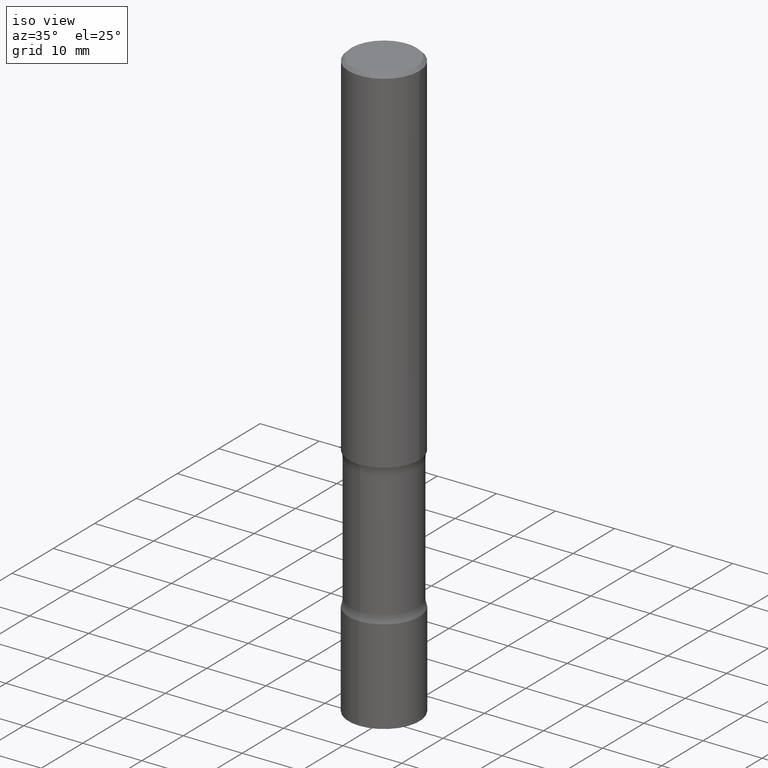
[diagram: clean part render]
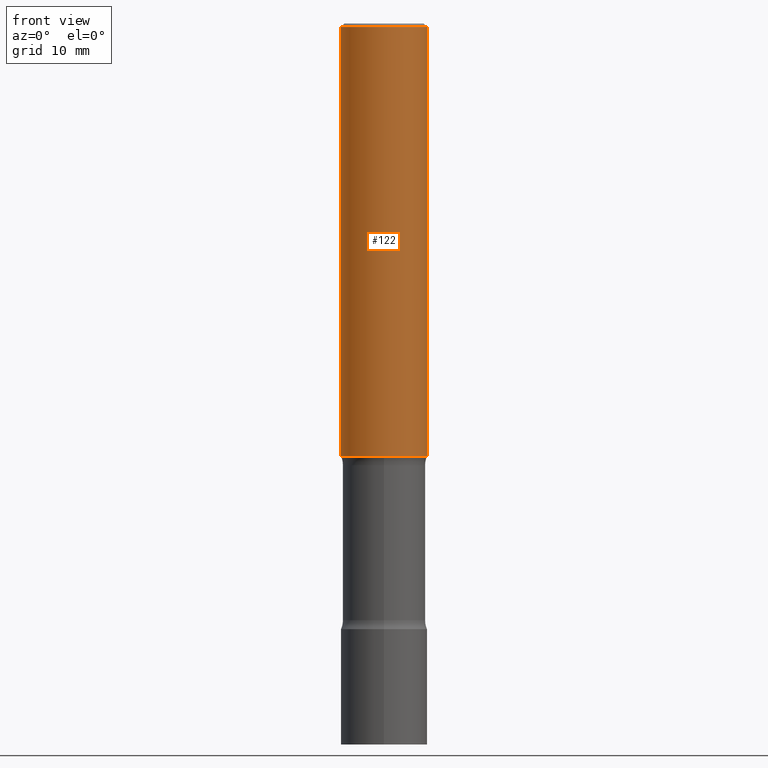
[diagram: tour spotlight — one face highlighted and labeled with its STEP entity id]
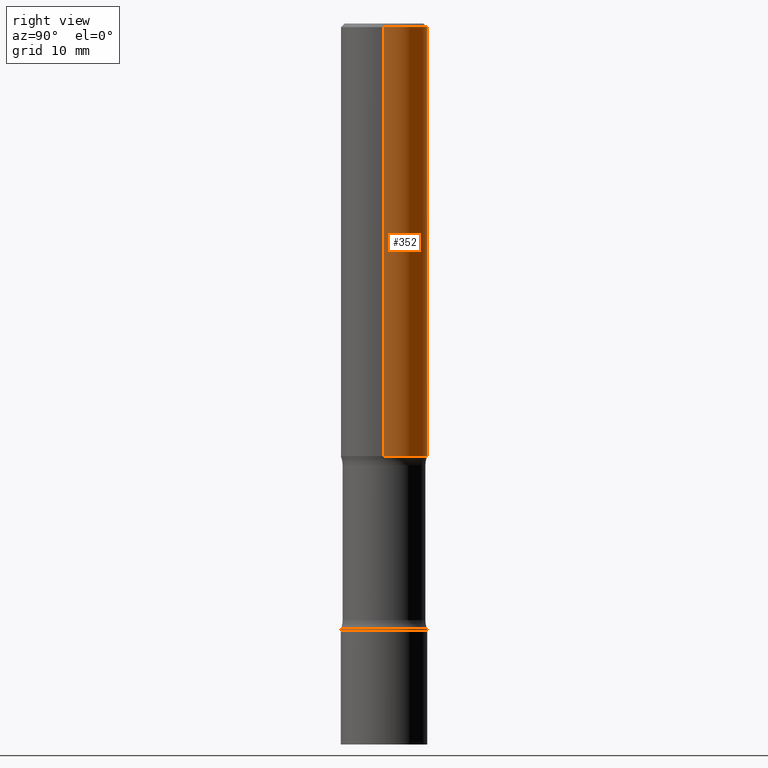
[diagram: tour spotlight — one face highlighted and labeled with its STEP entity id]
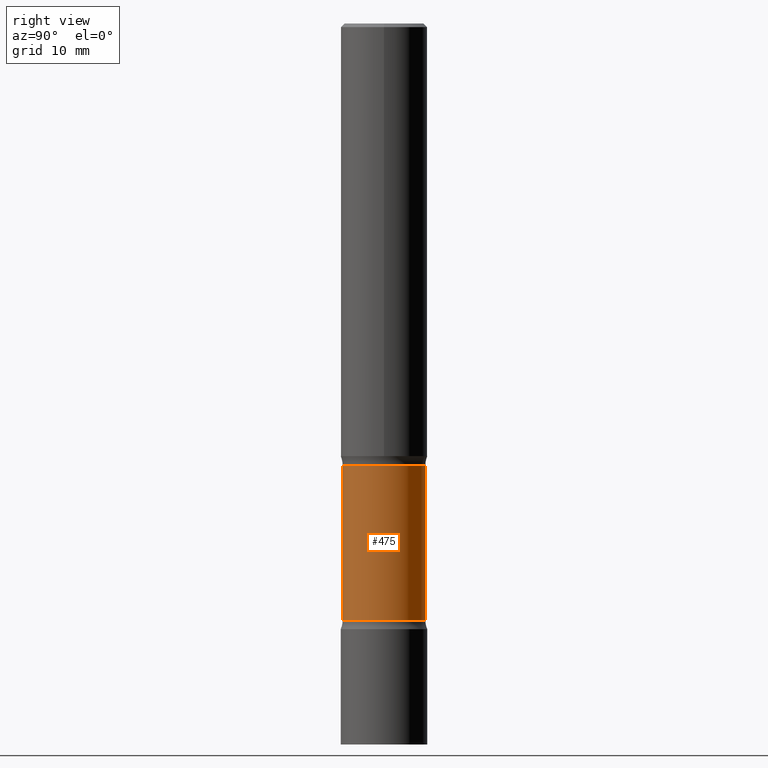
[diagram: tour spotlight — one face highlighted and labeled with its STEP entity id]
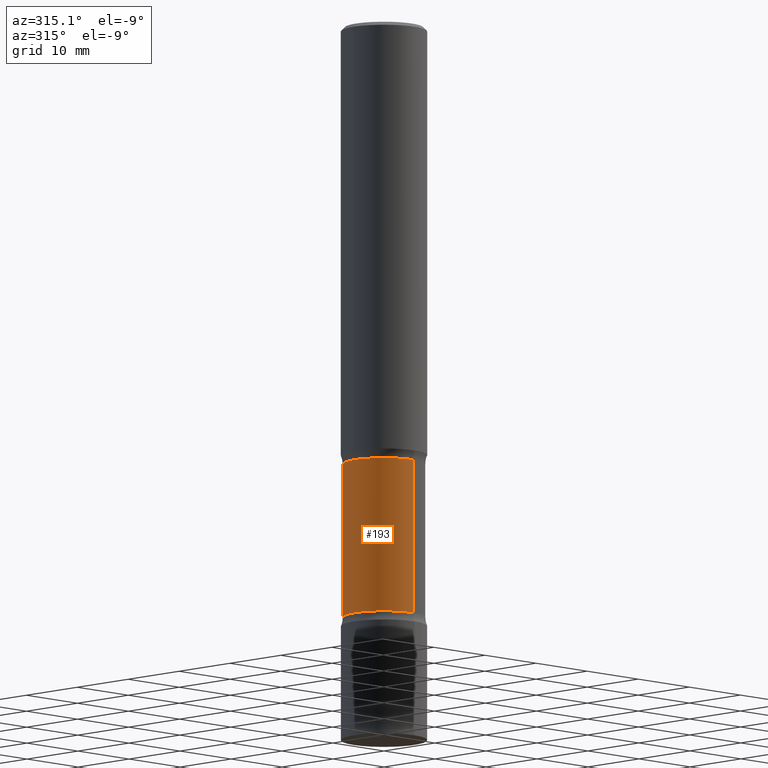
[diagram: tour spotlight — one face highlighted and labeled with its STEP entity id]
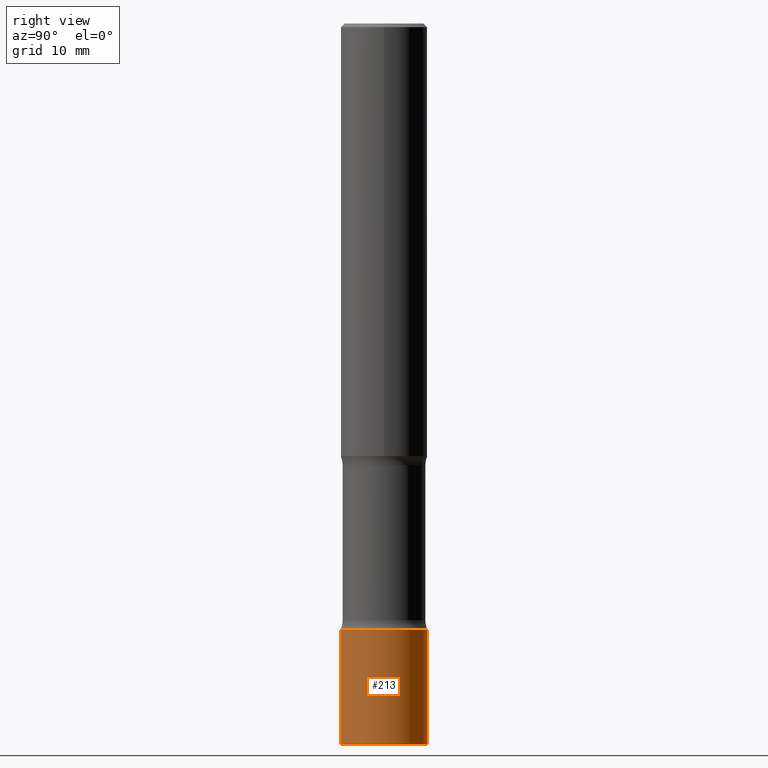
[diagram: tour spotlight — one face highlighted and labeled with its STEP entity id]
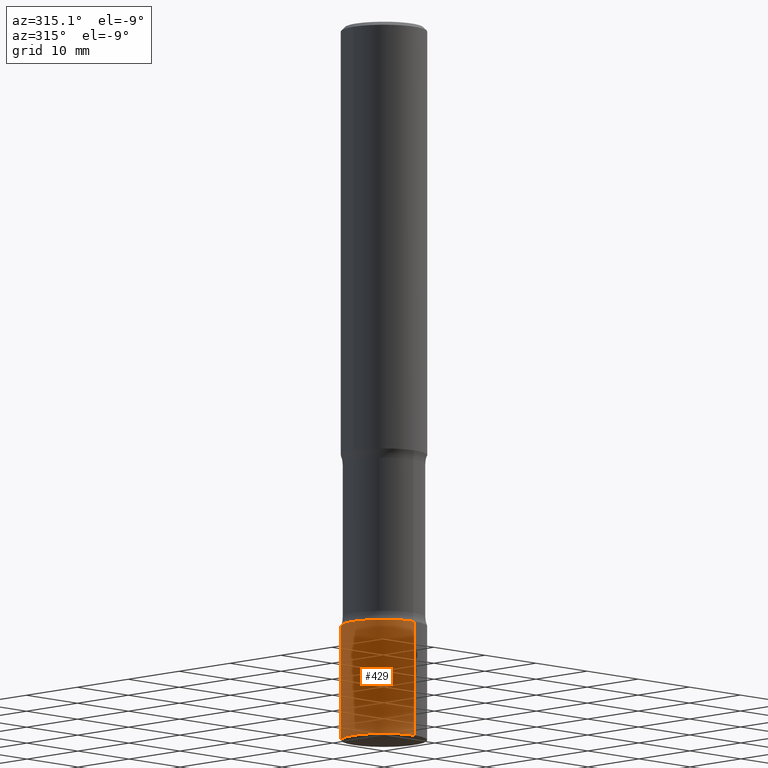
[diagram: tour spotlight — one face highlighted and labeled with its STEP entity id]
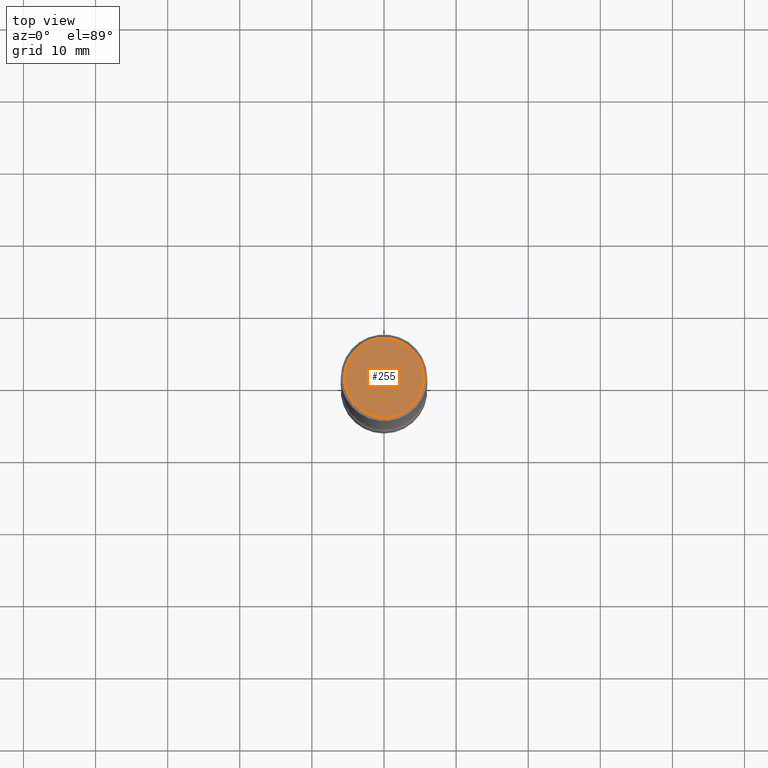
[diagram: tour spotlight — one face highlighted and labeled with its STEP entity id]
A machine part: a face-by-face anatomy tour. The part has 18 B-rep faces; the first image is the clean iso view, then the 7 largest visible faces are spotlighted one at a time (largest first), each with its STEP entity span.

Face 1 — front view, entity #122. In plain terms, the highlighted cylindrical surface (partial cylindrical patch) has radius 5.9995 mm, axis along (-0, 0, 1).
Definition (entity closure, byte-faithful):
#11 = CARTESIAN_POINT ( 'NONE',  ( 5.776686413970529753E-29, -8.247577218615278049E-15, -2.362199999999999633 ) ) ;
#15 = DIRECTION ( 'NONE',  ( -2.445468806185136597E-29, 3.491481338843145583E-15, 1.000000000000000000 ) ) ;
#39 = EDGE_CURVE ( 'NONE', #190, #227, #426, .T. ) ;
#50 = AXIS2_PLACEMENT_3D ( 'NONE', #11, #15, #476 ) ;
#70 = CARTESIAN_POINT ( 'NONE',  ( -0.2361999999999997157, 1.579546157692631255E-15, -0.02000000000000005246 ) ) ;
#79 = DIRECTION ( 'NONE',  ( -2.445468806185136877E-29, 3.491481338843145188E-15, 1.000000000000000000 ) ) ;
#81 = DIRECTION ( 'NONE',  ( -2.445468806185136597E-29, 3.491481338843145583E-15, 1.000000000000000000 ) ) ;
#101 = CARTESIAN_POINT ( 'NONE',  ( 4.890937612370285420E-31, -6.982962677686308865E-17, -0.02000000000000005246 ) ) ;
#121 = FACE_OUTER_BOUND ( 'NONE', #409, .T. ) ;
#122 = ADVANCED_FACE ( 'NONE', ( #121 ), #473, .T. ) ;
#173 = VERTEX_POINT ( 'NONE', #501 ) ;
#184 = ORIENTED_EDGE ( 'NONE', *, *, #435, .T. ) ;
#190 = VERTEX_POINT ( 'NONE', #505 ) ;
#210 = VECTOR ( 'NONE', #439, 39.37007874015748143 ) ;
#227 = VERTEX_POINT ( 'NONE', #70 ) ;
#240 = DIRECTION ( 'NONE',  ( 1.000000000000000000, -6.982962677686266711E-15, 4.876176775795935793E-29 ) ) ;
#241 = CIRCLE ( 'NONE', #300, 0.2361999999999997157 ) ;
#254 = DIRECTION ( 'NONE',  ( 1.000000000000000000, -6.982962677686266711E-15, 0.000000000000000000 ) ) ;
#261 = VECTOR ( 'NONE', #79, 39.37007874015748143 ) ;
#263 = ORIENTED_EDGE ( 'NONE', *, *, #39, .F. ) ;
#282 = CARTESIAN_POINT ( 'NONE',  ( 0.2361999999999998545, -1.649375784469495145E-15, 1.151752954442999387E-29 ) ) ;
#300 = AXIS2_PLACEMENT_3D ( 'NONE', #101, #412, #254 ) ;
#312 = CARTESIAN_POINT ( 'NONE',  ( 0.000000000000000000, 0.000000000000000000, 0.000000000000000000 ) ) ;
#334 = VERTEX_POINT ( 'NONE', #431 ) ;
#355 = ORIENTED_EDGE ( 'NONE', *, *, #436, .T. ) ;
#389 = CARTESIAN_POINT ( 'NONE',  ( -0.2361999999999998545, 1.678301941865355605E-15, -1.161852468318208056E-29 ) ) ;
#402 = ORIENTED_EDGE ( 'NONE', *, *, #490, .F. ) ;
#403 = AXIS2_PLACEMENT_3D ( 'NONE', #312, #81, #240 ) ;
#409 = EDGE_LOOP ( 'NONE', ( #263, #184, #355, #402 ) ) ;
#412 = DIRECTION ( 'NONE',  ( -2.445468806185136597E-29, 3.491481338843145583E-15, 1.000000000000000000 ) ) ;
#426 = LINE ( 'NONE', #389, #261 ) ;
#431 = CARTESIAN_POINT ( 'NONE',  ( 0.2361999999999999933, -9.896953003084774574E-15, -2.362199999999999633 ) ) ;
#435 = EDGE_CURVE ( 'NONE', #190, #334, #438, .T. ) ;
#436 = EDGE_CURVE ( 'NONE', #334, #173, #444, .T. ) ;
#438 = CIRCLE ( 'NONE', #50, 0.2361999999999999933 ) ;
#439 = DIRECTION ( 'NONE',  ( -2.445468806185136877E-29, 3.491481338843145188E-15, 1.000000000000000000 ) ) ;
#444 = LINE ( 'NONE', #282, #210 ) ;
#473 = CYLINDRICAL_SURFACE ( 'NONE', #403, 0.2361999999999998545 ) ;
#476 = DIRECTION ( 'NONE',  ( 1.000000000000000000, -6.982962677686269077E-15, 0.000000000000000000 ) ) ;
#490 = EDGE_CURVE ( 'NONE', #227, #173, #241, .T. ) ;
#501 = CARTESIAN_POINT ( 'NONE',  ( 0.2361999999999997157, -1.690279253850496996E-15, -0.02000000000000005246 ) ) ;
#505 = CARTESIAN_POINT ( 'NONE',  ( -0.2362000000000000210, -2.480401480830709941E-15, -2.362199999999999633 ) ) ;

Face 2 — right view, entity #352. In plain terms, the highlighted cylindrical surface (partial cylindrical patch) has radius 5.9995 mm, axis along (-0, 0, 1).
Definition (entity closure, byte-faithful):
#39 = EDGE_CURVE ( 'NONE', #190, #227, #426, .T. ) ;
#56 = DIRECTION ( 'NONE',  ( -2.445468806185136597E-29, 3.491481338843145583E-15, 1.000000000000000000 ) ) ;
#70 = CARTESIAN_POINT ( 'NONE',  ( -0.2361999999999997157, 1.579546157692631255E-15, -0.02000000000000005246 ) ) ;
#79 = DIRECTION ( 'NONE',  ( -2.445468806185136877E-29, 3.491481338843145188E-15, 1.000000000000000000 ) ) ;
#80 = DIRECTION ( 'NONE',  ( -2.445468806185136597E-29, 3.491481338843145583E-15, 1.000000000000000000 ) ) ;
#83 = CARTESIAN_POINT ( 'NONE',  ( 5.776686413970529753E-29, -8.247577218615278049E-15, -2.362199999999999633 ) ) ;
#125 = AXIS2_PLACEMENT_3D ( 'NONE', #157, #196, #201 ) ;
#127 = EDGE_CURVE ( 'NONE', #173, #227, #337, .T. ) ;
#129 = EDGE_LOOP ( 'NONE', ( #440, #357, #488, #419 ) ) ;
#131 = FACE_OUTER_BOUND ( 'NONE', #129, .T. ) ;
#157 = CARTESIAN_POINT ( 'NONE',  ( 4.890937612370285420E-31, -6.982962677686308865E-17, -0.02000000000000005246 ) ) ;
#173 = VERTEX_POINT ( 'NONE', #501 ) ;
#190 = VERTEX_POINT ( 'NONE', #505 ) ;
#196 = DIRECTION ( 'NONE',  ( -2.445468806185136597E-29, 3.491481338843145583E-15, 1.000000000000000000 ) ) ;
#201 = DIRECTION ( 'NONE',  ( 1.000000000000000000, -6.982962677686266711E-15, 0.000000000000000000 ) ) ;
#207 = CARTESIAN_POINT ( 'NONE',  ( 0.000000000000000000, 0.000000000000000000, 0.000000000000000000 ) ) ;
#210 = VECTOR ( 'NONE', #439, 39.37007874015748143 ) ;
#227 = VERTEX_POINT ( 'NONE', #70 ) ;
#243 = CYLINDRICAL_SURFACE ( 'NONE', #456, 0.2361999999999998545 ) ;
#246 = DIRECTION ( 'NONE',  ( 1.000000000000000000, -6.982962677686269077E-15, 0.000000000000000000 ) ) ;
#261 = VECTOR ( 'NONE', #79, 39.37007874015748143 ) ;
#282 = CARTESIAN_POINT ( 'NONE',  ( 0.2361999999999998545, -1.649375784469495145E-15, 1.151752954442999387E-29 ) ) ;
#334 = VERTEX_POINT ( 'NONE', #431 ) ;
#337 = CIRCLE ( 'NONE', #125, 0.2361999999999997157 ) ;
#350 = DIRECTION ( 'NONE',  ( 1.000000000000000000, -6.982962677686266711E-15, 4.876176775795935793E-29 ) ) ;
#352 = ADVANCED_FACE ( 'NONE', ( #131 ), #243, .T. ) ;
#357 = ORIENTED_EDGE ( 'NONE', *, *, #39, .T. ) ;
#389 = CARTESIAN_POINT ( 'NONE',  ( -0.2361999999999998545, 1.678301941865355605E-15, -1.161852468318208056E-29 ) ) ;
#405 = CIRCLE ( 'NONE', #489, 0.2361999999999999933 ) ;
#419 = ORIENTED_EDGE ( 'NONE', *, *, #436, .F. ) ;
#426 = LINE ( 'NONE', #389, #261 ) ;
#431 = CARTESIAN_POINT ( 'NONE',  ( 0.2361999999999999933, -9.896953003084774574E-15, -2.362199999999999633 ) ) ;
#436 = EDGE_CURVE ( 'NONE', #334, #173, #444, .T. ) ;
#439 = DIRECTION ( 'NONE',  ( -2.445468806185136877E-29, 3.491481338843145188E-15, 1.000000000000000000 ) ) ;
#440 = ORIENTED_EDGE ( 'NONE', *, *, #468, .T. ) ;
#444 = LINE ( 'NONE', #282, #210 ) ;
#456 = AXIS2_PLACEMENT_3D ( 'NONE', #207, #80, #350 ) ;
#468 = EDGE_CURVE ( 'NONE', #334, #190, #405, .T. ) ;
#488 = ORIENTED_EDGE ( 'NONE', *, *, #127, .F. ) ;
#489 = AXIS2_PLACEMENT_3D ( 'NONE', #83, #56, #246 ) ;
#501 = CARTESIAN_POINT ( 'NONE',  ( 0.2361999999999997157, -1.690279253850496996E-15, -0.02000000000000005246 ) ) ;
#505 = CARTESIAN_POINT ( 'NONE',  ( -0.2362000000000000210, -2.480401480830709941E-15, -2.362199999999999633 ) ) ;

Face 3 — right view, entity #475. In plain terms, the highlighted cylindrical surface (partial cylindrical patch) has radius 5.7391 mm, axis along (0, -0, -1).
Definition (entity closure, byte-faithful):
#5 = EDGE_CURVE ( 'NONE', #478, #52, #31, .T. ) ;
#25 = EDGE_CURVE ( 'NONE', #52, #294, #395, .T. ) ;
#31 = LINE ( 'NONE', #453, #351 ) ;
#37 = CARTESIAN_POINT ( 'NONE',  ( -1.585289574835001111E-15, -0.2259500000000087272, -2.411772547846564585 ) ) ;
#40 = DIRECTION ( 'NONE',  ( 6.982962677686265922E-15, 1.000000000000000000, -2.418099573944909253E-15 ) ) ;
#52 = VERTEX_POINT ( 'NONE', #470 ) ;
#53 = FACE_OUTER_BOUND ( 'NONE', #319, .T. ) ;
#63 = VERTEX_POINT ( 'NONE', #37 ) ;
#86 = EDGE_CURVE ( 'NONE', #63, #294, #432, .T. ) ;
#92 = ORIENTED_EDGE ( 'NONE', *, *, #5, .F. ) ;
#108 = DIRECTION ( 'NONE',  ( 6.982962677686265922E-15, 1.000000000000000000, -3.627149360917364668E-15 ) ) ;
#134 = CYLINDRICAL_SURFACE ( 'NONE', #338, 0.2259500000000001507 ) ;
#146 = DIRECTION ( 'NONE',  ( 6.982962677686267499E-15, 1.000000000000000000, -2.418099573944909253E-15 ) ) ;
#165 = EDGE_CURVE ( 'NONE', #478, #63, #283, .T. ) ;
#194 = DIRECTION ( 'NONE',  ( 2.595083030119239242E-29, -3.277225254656718769E-15, -1.000000000000000000 ) ) ;
#203 = CARTESIAN_POINT ( 'NONE',  ( 1.577800417023270494E-15, 0.2259499999999915187, -2.411772547846566361 ) ) ;
#215 = DIRECTION ( 'NONE',  ( 2.595083030119239242E-29, -3.277225254656718769E-15, -1.000000000000000000 ) ) ;
#229 = ORIENTED_EDGE ( 'NONE', *, *, #25, .F. ) ;
#237 = DIRECTION ( 'NONE',  ( 2.595083030119239242E-29, -3.277225254656719163E-15, -1.000000000000000000 ) ) ;
#245 = ORIENTED_EDGE ( 'NONE', *, *, #165, .T. ) ;
#262 = AXIS2_PLACEMENT_3D ( 'NONE', #330, #336, #108 ) ;
#283 = CIRCLE ( 'NONE', #262, 0.2259500000000001230 ) ;
#287 = CARTESIAN_POINT ( 'NONE',  ( 9.722309541468059850E-29, -1.361063429711225876E-14, -3.937000000000000277 ) ) ;
#294 = VERTEX_POINT ( 'NONE', #415 ) ;
#319 = EDGE_LOOP ( 'NONE', ( #245, #354, #229, #92 ) ) ;
#330 = CARTESIAN_POINT ( 'NONE',  ( 5.764217663312678584E-29, -8.612120371819300146E-15, -2.411772547846565473 ) ) ;
#336 = DIRECTION ( 'NONE',  ( 2.595083030119239242E-29, -3.277225254656718769E-15, -1.000000000000000000 ) ) ;
#338 = AXIS2_PLACEMENT_3D ( 'NONE', #287, #215, #40 ) ;
#351 = VECTOR ( 'NONE', #370, 39.37007874015748143 ) ;
#354 = ORIENTED_EDGE ( 'NONE', *, *, #86, .T. ) ;
#368 = AXIS2_PLACEMENT_3D ( 'NONE', #493, #194, #146 ) ;
#370 = DIRECTION ( 'NONE',  ( 2.595083030119239242E-29, -3.277225254656719163E-15, -1.000000000000000000 ) ) ;
#395 = CIRCLE ( 'NONE', #368, 0.2259500000000001785 ) ;
#415 = CARTESIAN_POINT ( 'NONE',  ( -1.585289574834976853E-15, -0.2259500000000115305, -3.257527452153434755 ) ) ;
#428 = CARTESIAN_POINT ( 'NONE',  ( -1.550129522596381145E-15, -0.2259500000000137787, -3.936999999999999389 ) ) ;
#432 = LINE ( 'NONE', #428, #499 ) ;
#453 = CARTESIAN_POINT ( 'NONE',  ( 1.577800417023310331E-15, 0.2259499999999865227, -3.937000000000000721 ) ) ;
#470 = CARTESIAN_POINT ( 'NONE',  ( 1.577800417023292779E-15, 0.2259499999999888264, -3.257527452153435643 ) ) ;
#475 = ADVANCED_FACE ( 'NONE', ( #53 ), #134, .T. ) ;
#478 = VERTEX_POINT ( 'NONE', #203 ) ;
#493 = CARTESIAN_POINT ( 'NONE',  ( 7.959021863119556316E-29, -1.138384970346355123E-14, -3.257527452153435199 ) ) ;
#499 = VECTOR ( 'NONE', #237, 39.37007874015748143 ) ;

Face 4 — auxiliary view, entity #193. In plain terms, the highlighted cylindrical surface (partial cylindrical patch) has radius 5.7391 mm, axis along (0, -0, -1).
Definition (entity closure, byte-faithful):
#5 = EDGE_CURVE ( 'NONE', #478, #52, #31, .T. ) ;
#20 = CIRCLE ( 'NONE', #75, 0.2259500000000001785 ) ;
#31 = LINE ( 'NONE', #453, #351 ) ;
#37 = CARTESIAN_POINT ( 'NONE',  ( -1.585289574835001111E-15, -0.2259500000000087272, -2.411772547846564585 ) ) ;
#46 = DIRECTION ( 'NONE',  ( 2.595083030119239242E-29, -3.277225254656718769E-15, -1.000000000000000000 ) ) ;
#49 = EDGE_CURVE ( 'NONE', #63, #478, #186, .T. ) ;
#52 = VERTEX_POINT ( 'NONE', #470 ) ;
#57 = AXIS2_PLACEMENT_3D ( 'NONE', #383, #418, #154 ) ;
#63 = VERTEX_POINT ( 'NONE', #37 ) ;
#75 = AXIS2_PLACEMENT_3D ( 'NONE', #120, #123, #399 ) ;
#86 = EDGE_CURVE ( 'NONE', #63, #294, #432, .T. ) ;
#120 = CARTESIAN_POINT ( 'NONE',  ( 7.959021863119556316E-29, -1.138384970346355123E-14, -3.257527452153435199 ) ) ;
#123 = DIRECTION ( 'NONE',  ( 2.595083030119239242E-29, -3.277225254656718769E-15, -1.000000000000000000 ) ) ;
#154 = DIRECTION ( 'NONE',  ( 6.982962677686265922E-15, 1.000000000000000000, -2.418099573944909253E-15 ) ) ;
#161 = AXIS2_PLACEMENT_3D ( 'NONE', #506, #46, #166 ) ;
#166 = DIRECTION ( 'NONE',  ( 6.982962677686265922E-15, 1.000000000000000000, -3.627149360917364668E-15 ) ) ;
#180 = ORIENTED_EDGE ( 'NONE', *, *, #49, .T. ) ;
#186 = CIRCLE ( 'NONE', #161, 0.2259500000000001230 ) ;
#187 = ORIENTED_EDGE ( 'NONE', *, *, #86, .F. ) ;
#193 = ADVANCED_FACE ( 'NONE', ( #268 ), #492, .T. ) ;
#203 = CARTESIAN_POINT ( 'NONE',  ( 1.577800417023270494E-15, 0.2259499999999915187, -2.411772547846566361 ) ) ;
#231 = ORIENTED_EDGE ( 'NONE', *, *, #329, .F. ) ;
#237 = DIRECTION ( 'NONE',  ( 2.595083030119239242E-29, -3.277225254656719163E-15, -1.000000000000000000 ) ) ;
#247 = ORIENTED_EDGE ( 'NONE', *, *, #5, .T. ) ;
#250 = EDGE_LOOP ( 'NONE', ( #187, #180, #247, #231 ) ) ;
#268 = FACE_OUTER_BOUND ( 'NONE', #250, .T. ) ;
#294 = VERTEX_POINT ( 'NONE', #415 ) ;
#329 = EDGE_CURVE ( 'NONE', #294, #52, #20, .T. ) ;
#351 = VECTOR ( 'NONE', #370, 39.37007874015748143 ) ;
#370 = DIRECTION ( 'NONE',  ( 2.595083030119239242E-29, -3.277225254656719163E-15, -1.000000000000000000 ) ) ;
#383 = CARTESIAN_POINT ( 'NONE',  ( 9.722309541468059850E-29, -1.361063429711225876E-14, -3.937000000000000277 ) ) ;
#399 = DIRECTION ( 'NONE',  ( 6.982962677686267499E-15, 1.000000000000000000, -2.418099573944909253E-15 ) ) ;
#415 = CARTESIAN_POINT ( 'NONE',  ( -1.585289574834976853E-15, -0.2259500000000115305, -3.257527452153434755 ) ) ;
#418 = DIRECTION ( 'NONE',  ( 2.595083030119239242E-29, -3.277225254656718769E-15, -1.000000000000000000 ) ) ;
#428 = CARTESIAN_POINT ( 'NONE',  ( -1.550129522596381145E-15, -0.2259500000000137787, -3.936999999999999389 ) ) ;
#432 = LINE ( 'NONE', #428, #499 ) ;
#453 = CARTESIAN_POINT ( 'NONE',  ( 1.577800417023310331E-15, 0.2259499999999865227, -3.937000000000000721 ) ) ;
#470 = CARTESIAN_POINT ( 'NONE',  ( 1.577800417023292779E-15, 0.2259499999999888264, -3.257527452153435643 ) ) ;
#478 = VERTEX_POINT ( 'NONE', #203 ) ;
#492 = CYLINDRICAL_SURFACE ( 'NONE', #57, 0.2259500000000001507 ) ;
#499 = VECTOR ( 'NONE', #237, 39.37007874015748143 ) ;
#506 = CARTESIAN_POINT ( 'NONE',  ( 5.764217663312678584E-29, -8.612120371819300146E-15, -2.411772547846565473 ) ) ;

Face 5 — right view, entity #213. In plain terms, the highlighted cylindrical surface (partial cylindrical patch) has radius 5.9995 mm, axis along (-0, 0, 1).
Definition (entity closure, byte-faithful):
#2 = DIRECTION ( 'NONE',  ( -6.982962677686265922E-15, -1.000000000000000000, 4.626330217890370914E-15 ) ) ;
#16 = EDGE_CURVE ( 'NONE', #502, #197, #209, .T. ) ;
#30 = DIRECTION ( 'NONE',  ( -2.445546472981146921E-29, 3.491370115570739041E-15, 1.000000000000000000 ) ) ;
#64 = AXIS2_PLACEMENT_3D ( 'NONE', #422, #462, #341 ) ;
#72 = CYLINDRICAL_SURFACE ( 'NONE', #94, 0.2361999999999999378 ) ;
#89 = ORIENTED_EDGE ( 'NONE', *, *, #179, .F. ) ;
#94 = AXIS2_PLACEMENT_3D ( 'NONE', #423, #230, #379 ) ;
#102 = CARTESIAN_POINT ( 'NONE',  ( 1.678301941865355803E-15, 0.2361999999999999378, -8.246616212978083012E-16 ) ) ;
#107 = EDGE_LOOP ( 'NONE', ( #219, #200, #138, #89 ) ) ;
#109 = VERTEX_POINT ( 'NONE', #277 ) ;
#138 = ORIENTED_EDGE ( 'NONE', *, *, #421, .F. ) ;
#179 = EDGE_CURVE ( 'NONE', #502, #284, #299, .T. ) ;
#197 = VERTEX_POINT ( 'NONE', #420 ) ;
#200 = ORIENTED_EDGE ( 'NONE', *, *, #275, .T. ) ;
#209 = CIRCLE ( 'NONE', #64, 0.2361999999999999378 ) ;
#213 = ADVANCED_FACE ( 'NONE', ( #461 ), #72, .T. ) ;
#219 = ORIENTED_EDGE ( 'NONE', *, *, #16, .T. ) ;
#230 = DIRECTION ( 'NONE',  ( -2.445546472981147201E-29, 3.491370115570739041E-15, 1.000000000000000000 ) ) ;
#236 = DIRECTION ( 'NONE',  ( -2.445546472981146921E-29, 3.491370115570739041E-15, 1.000000000000000000 ) ) ;
#259 = CARTESIAN_POINT ( 'NONE',  ( -1.649375784469414681E-15, -0.2362000000000114841, -3.307099999999999262 ) ) ;
#275 = EDGE_CURVE ( 'NONE', #197, #109, #427, .T. ) ;
#277 = CARTESIAN_POINT ( 'NONE',  ( 1.678301941865452241E-15, 0.2361999999999883915, -3.307100000000001483 ) ) ;
#284 = VERTEX_POINT ( 'NONE', #259 ) ;
#291 = VECTOR ( 'NONE', #236, 39.37007874015748143 ) ;
#299 = LINE ( 'NONE', #342, #321 ) ;
#314 = DIRECTION ( 'NONE',  ( -2.445546472981147201E-29, 3.491370115570739041E-15, 1.000000000000000000 ) ) ;
#320 = CARTESIAN_POINT ( 'NONE',  ( 8.087666740795951310E-29, -1.154631010920399245E-14, -3.307100000000000151 ) ) ;
#321 = VECTOR ( 'NONE', #30, 39.37007874015748143 ) ;
#341 = DIRECTION ( 'NONE',  ( -6.982962677686265922E-15, -1.000000000000000000, 4.626330217890370914E-15 ) ) ;
#342 = CARTESIAN_POINT ( 'NONE',  ( -1.649375784469495539E-15, -0.2361999999999999378, 8.246616212978083012E-16 ) ) ;
#379 = DIRECTION ( 'NONE',  ( -6.982962677686265922E-15, -1.000000000000000000, 3.491370115570739041E-15 ) ) ;
#390 = AXIS2_PLACEMENT_3D ( 'NONE', #320, #314, #2 ) ;
#414 = CIRCLE ( 'NONE', #390, 0.2361999999999999378 ) ;
#420 = CARTESIAN_POINT ( 'NONE',  ( 1.678301941865444352E-15, 0.2361999999999861710, -3.937000000000001165 ) ) ;
#421 = EDGE_CURVE ( 'NONE', #284, #109, #414, .T. ) ;
#422 = CARTESIAN_POINT ( 'NONE',  ( 9.628116464126776424E-29, -1.374552414500199917E-14, -3.937000000000000277 ) ) ;
#423 = CARTESIAN_POINT ( 'NONE',  ( 0.000000000000000000, 0.000000000000000000, 0.000000000000000000 ) ) ;
#427 = LINE ( 'NONE', #102, #291 ) ;
#451 = CARTESIAN_POINT ( 'NONE',  ( -1.649375784469399101E-15, -0.2362000000000136768, -3.936999999999998945 ) ) ;
#461 = FACE_OUTER_BOUND ( 'NONE', #107, .T. ) ;
#462 = DIRECTION ( 'NONE',  ( -2.445546472981147201E-29, 3.491370115570739041E-15, 1.000000000000000000 ) ) ;
#502 = VERTEX_POINT ( 'NONE', #451 ) ;

Face 6 — auxiliary view, entity #429. In plain terms, the highlighted cylindrical surface (partial cylindrical patch) has radius 5.9995 mm, axis along (-0, 0, 1).
Definition (entity closure, byte-faithful):
#8 = ORIENTED_EDGE ( 'NONE', *, *, #179, .T. ) ;
#30 = DIRECTION ( 'NONE',  ( -2.445546472981146921E-29, 3.491370115570739041E-15, 1.000000000000000000 ) ) ;
#43 = CYLINDRICAL_SURFACE ( 'NONE', #369, 0.2361999999999999378 ) ;
#44 = CIRCLE ( 'NONE', #216, 0.2361999999999999378 ) ;
#48 = DIRECTION ( 'NONE',  ( -2.445546472981147201E-29, 3.491370115570739041E-15, 1.000000000000000000 ) ) ;
#65 = DIRECTION ( 'NONE',  ( -6.982962677686265922E-15, -1.000000000000000000, 4.626330217890370914E-15 ) ) ;
#73 = EDGE_CURVE ( 'NONE', #109, #284, #44, .T. ) ;
#91 = CARTESIAN_POINT ( 'NONE',  ( 0.000000000000000000, 0.000000000000000000, 0.000000000000000000 ) ) ;
#102 = CARTESIAN_POINT ( 'NONE',  ( 1.678301941865355803E-15, 0.2361999999999999378, -8.246616212978083012E-16 ) ) ;
#109 = VERTEX_POINT ( 'NONE', #277 ) ;
#170 = DIRECTION ( 'NONE',  ( -6.982962677686265922E-15, -1.000000000000000000, 3.491370115570739041E-15 ) ) ;
#179 = EDGE_CURVE ( 'NONE', #502, #284, #299, .T. ) ;
#197 = VERTEX_POINT ( 'NONE', #420 ) ;
#202 = DIRECTION ( 'NONE',  ( -2.445546472981147201E-29, 3.491370115570739041E-15, 1.000000000000000000 ) ) ;
#211 = EDGE_LOOP ( 'NONE', ( #292, #364, #8, #297 ) ) ;
#216 = AXIS2_PLACEMENT_3D ( 'NONE', #384, #202, #343 ) ;
#218 = AXIS2_PLACEMENT_3D ( 'NONE', #327, #293, #65 ) ;
#236 = DIRECTION ( 'NONE',  ( -2.445546472981146921E-29, 3.491370115570739041E-15, 1.000000000000000000 ) ) ;
#259 = CARTESIAN_POINT ( 'NONE',  ( -1.649375784469414681E-15, -0.2362000000000114841, -3.307099999999999262 ) ) ;
#275 = EDGE_CURVE ( 'NONE', #197, #109, #427, .T. ) ;
#277 = CARTESIAN_POINT ( 'NONE',  ( 1.678301941865452241E-15, 0.2361999999999883915, -3.307100000000001483 ) ) ;
#284 = VERTEX_POINT ( 'NONE', #259 ) ;
#291 = VECTOR ( 'NONE', #236, 39.37007874015748143 ) ;
#292 = ORIENTED_EDGE ( 'NONE', *, *, #275, .F. ) ;
#293 = DIRECTION ( 'NONE',  ( -2.445546472981147201E-29, 3.491370115570739041E-15, 1.000000000000000000 ) ) ;
#297 = ORIENTED_EDGE ( 'NONE', *, *, #73, .F. ) ;
#299 = LINE ( 'NONE', #342, #321 ) ;
#321 = VECTOR ( 'NONE', #30, 39.37007874015748143 ) ;
#327 = CARTESIAN_POINT ( 'NONE',  ( 9.628116464126776424E-29, -1.374552414500199917E-14, -3.937000000000000277 ) ) ;
#342 = CARTESIAN_POINT ( 'NONE',  ( -1.649375784469495539E-15, -0.2361999999999999378, 8.246616212978083012E-16 ) ) ;
#343 = DIRECTION ( 'NONE',  ( -6.982962677686265922E-15, -1.000000000000000000, 4.626330217890370914E-15 ) ) ;
#356 = FACE_OUTER_BOUND ( 'NONE', #211, .T. ) ;
#364 = ORIENTED_EDGE ( 'NONE', *, *, #479, .T. ) ;
#369 = AXIS2_PLACEMENT_3D ( 'NONE', #91, #48, #170 ) ;
#384 = CARTESIAN_POINT ( 'NONE',  ( 8.087666740795951310E-29, -1.154631010920399245E-14, -3.307100000000000151 ) ) ;
#420 = CARTESIAN_POINT ( 'NONE',  ( 1.678301941865444352E-15, 0.2361999999999861710, -3.937000000000001165 ) ) ;
#427 = LINE ( 'NONE', #102, #291 ) ;
#429 = ADVANCED_FACE ( 'NONE', ( #356 ), #43, .T. ) ;
#447 = CIRCLE ( 'NONE', #218, 0.2361999999999999378 ) ;
#451 = CARTESIAN_POINT ( 'NONE',  ( -1.649375784469399101E-15, -0.2362000000000136768, -3.936999999999998945 ) ) ;
#479 = EDGE_CURVE ( 'NONE', #197, #502, #447, .T. ) ;
#502 = VERTEX_POINT ( 'NONE', #451 ) ;

Face 7 — top view, entity #255. In plain terms, the highlighted planar face has unit normal (0, -0, -1).
Definition (entity closure, byte-faithful):
#21 = CARTESIAN_POINT ( 'NONE',  ( 0.2161999999999996980, -1.586759460484350016E-15, 4.268512490111238857E-18 ) ) ;
#26 = DIRECTION ( 'NONE',  ( 1.000000000000000000, -6.982962677686266711E-15, 4.876217060660162401E-29 ) ) ;
#36 = DIRECTION ( 'NONE',  ( -1.000000000000000000, 6.982962677686265922E-15, -4.876176775795935793E-29 ) ) ;
#78 = PLANE ( 'NONE',  #396 ) ;
#117 = DIRECTION ( 'NONE',  ( 2.438088387897960049E-29, -3.491481338843145188E-15, -1.000000000000000000 ) ) ;
#145 = EDGE_CURVE ( 'NONE', #325, #281, #360, .T. ) ;
#189 = CARTESIAN_POINT ( 'NONE',  ( -1.043851414335219820E-46, 1.490343170380447200E-32, 4.268512490100411279E-18 ) ) ;
#205 = CIRCLE ( 'NONE', #477, 0.2161999999999996980 ) ;
#226 = CARTESIAN_POINT ( 'NONE',  ( -1.043851414335219820E-46, 1.490343170380447200E-32, 4.268512490100411279E-18 ) ) ;
#233 = DIRECTION ( 'NONE',  ( -2.445468806185136597E-29, 3.491481338843145583E-15, 1.000000000000000000 ) ) ;
#255 = ADVANCED_FACE ( 'NONE', ( #340 ), #78, .F. ) ;
#264 = DIRECTION ( 'NONE',  ( 1.000000000000000000, -6.982962677686266711E-15, 4.876217060660162401E-29 ) ) ;
#281 = VERTEX_POINT ( 'NONE', #21 ) ;
#323 = EDGE_CURVE ( 'NONE', #281, #325, #205, .T. ) ;
#325 = VERTEX_POINT ( 'NONE', #349 ) ;
#340 = FACE_OUTER_BOUND ( 'NONE', #382, .T. ) ;
#349 = CARTESIAN_POINT ( 'NONE',  ( -0.2161999999999996980, 1.544631344304200000E-15, 4.268512490089730842E-18 ) ) ;
#353 = AXIS2_PLACEMENT_3D ( 'NONE', #189, #233, #264 ) ;
#360 = CIRCLE ( 'NONE', #353, 0.2161999999999996980 ) ;
#373 = DIRECTION ( 'NONE',  ( -2.445468806185136597E-29, 3.491481338843145583E-15, 1.000000000000000000 ) ) ;
#382 = EDGE_LOOP ( 'NONE', ( #406, #484 ) ) ;
#396 = AXIS2_PLACEMENT_3D ( 'NONE', #452, #117, #36 ) ;
#406 = ORIENTED_EDGE ( 'NONE', *, *, #145, .T. ) ;
#452 = CARTESIAN_POINT ( 'NONE',  ( 1.509716530915768548E-15, 0.2161999999999996980, -7.527240092128368218E-16 ) ) ;
#477 = AXIS2_PLACEMENT_3D ( 'NONE', #226, #373, #26 ) ;
#484 = ORIENTED_EDGE ( 'NONE', *, *, #323, .T. ) ;